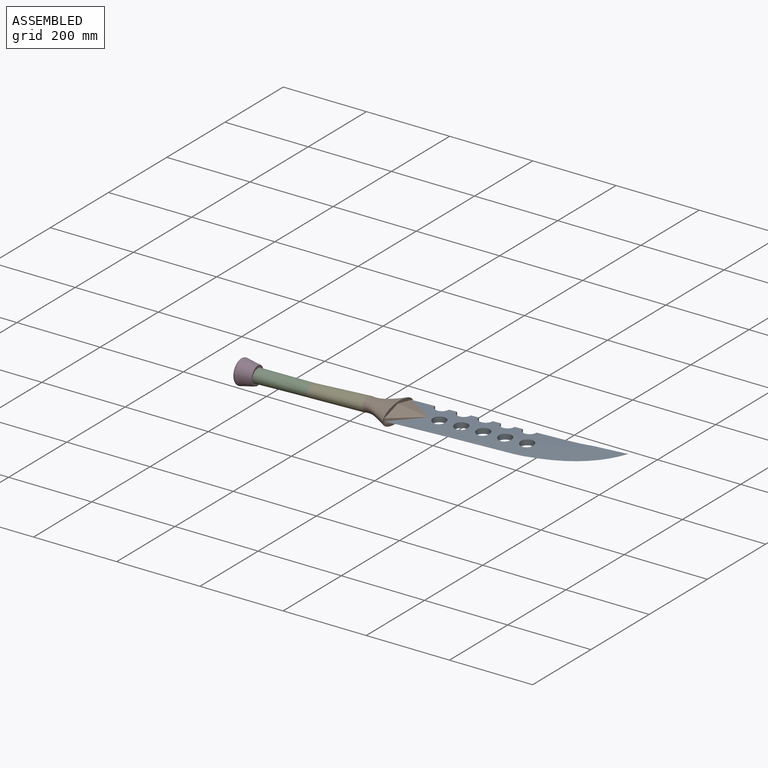
[diagram: assembled view]
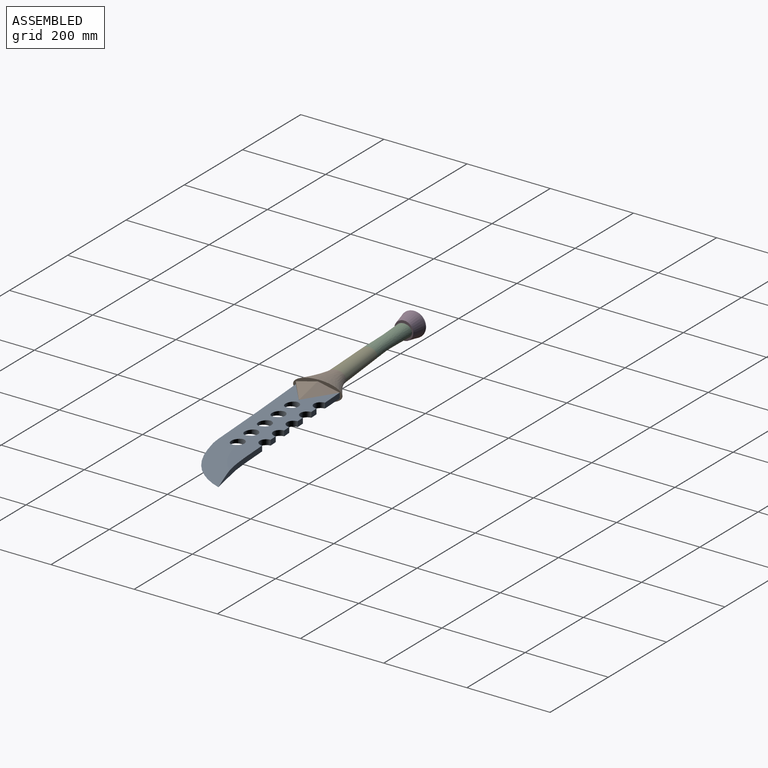
[diagram: assembled view, second angle]
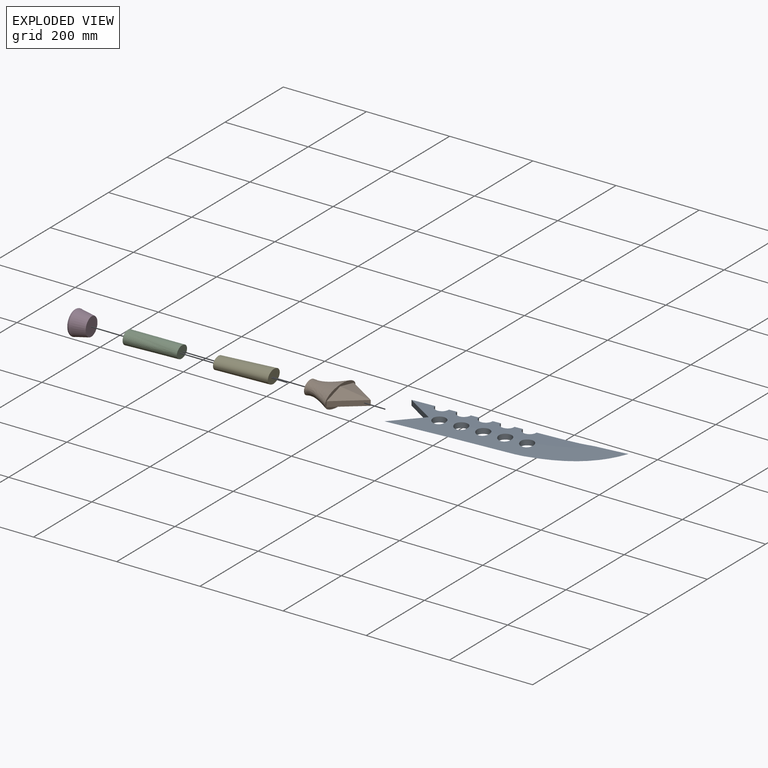
[diagram: exploded view]
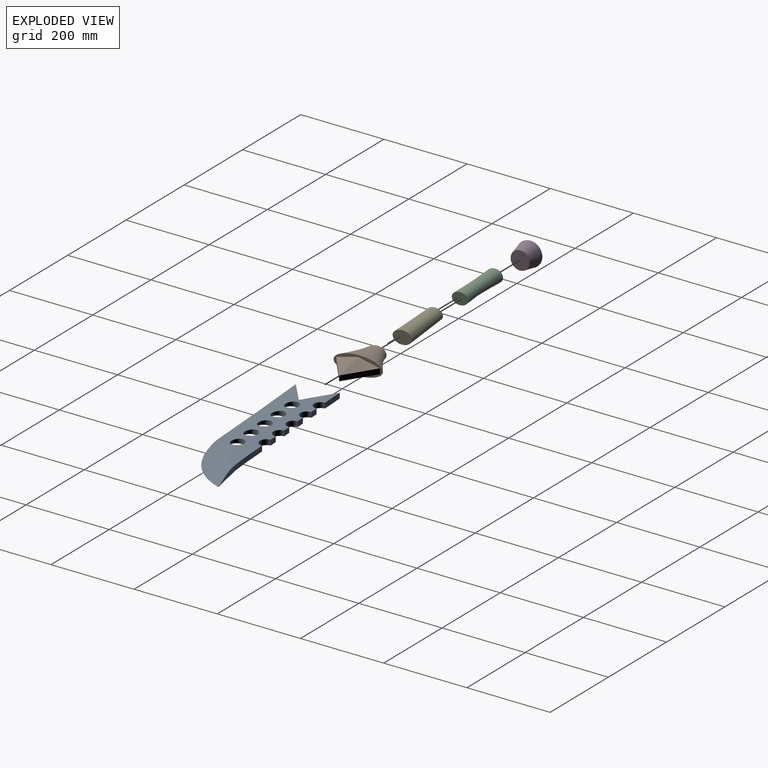
[diagram: exploded view, second angle]
ASSEMBLY  parts=5 mates=4
PART A: 22 faces, bbox 493.2x145.5x15.6 mm
  f0: extruded ~19.05x12.7mm, area 241.9mm2, adj f1,f17,f18,f19
  f1: cylinder r=15.88mm len=31.75mm, axis (0,0,-1), area 633.4mm2, adj f0,f2,f18,f19
  f2: extruded ~54.87x12.7mm, area 696.9mm2, adj f1,f3,f18,f19
  f3: plane 70.75x50.8mm, normal (-0.58,-0.81,0), area 1105.5mm2, adj f2,f4,f18,f19,f20,f21
  f4: plane 73.63x53.68mm, normal (-0.58,0.81,0), area 533.4mm2, adj f3,f20,f21
  f5: extruded ~199.1x21.88mm, area 2072.4mm2, adj f6,f18,f19,f20,f21
  f6: cylinder r=15.88mm len=31.75mm, axis (0,0,-1), area 633.5mm2, adj f5,f7,f18,f19
  f7: extruded ~19.05x12.7mm, area 241.9mm2, adj f6,f8,f18,f19
  f8: cylinder r=15.88mm len=31.75mm, axis (0,0,-1), area 631.9mm2, adj f7,f9,f18,f19
  f9: extruded ~19.05x12.7mm, area 241.9mm2, adj f8,f10,f18,f19
  f10: cylinder r=15.88mm len=31.75mm, axis (0,0,-1), area 633.4mm2, adj f9,f11,f18,f19
  f11: extruded ~19.05x12.7mm, area 241.9mm2, adj f10,f17,f18,f19
  f12: cylinder r=15.88mm len=31.75mm, axis (0,0,-1), area 1266.8mm2, adj f18,f19,f20,f21
  f13: cylinder r=15.88mm len=31.75mm, axis (0,0,-1), area 1266.8mm2, adj f18,f19,f20,f21
  f14: cylinder r=15.88mm len=31.75mm, axis (0,0,-1), area 1266.8mm2, adj f18,f19,f20,f21
  f15: cylinder r=15.88mm len=31.75mm, axis (0,0,-1), area 1266.8mm2, adj f18,f19,f20,f21
  f16: cylinder r=15.88mm len=31.75mm, axis (0,0,-1), area 1266.8mm2, adj f18,f19,f20,f21
  f17: cylinder r=15.88mm len=31.75mm, axis (0,0,-1), area 633.4mm2, adj f0,f11,f18,f19
  f18: plane 422.88x57.18mm, normal (0,0,1), area 12886.8mm2, adj f0,f1,f2,f3,f5,f6,f7,f8
  f19: plane 422.88x57.18mm, normal (0,0,-1), area 12886.6mm2, adj f0,f1,f2,f3,f5,f6,f7,f8
  f20: bspline ~490.28x142.64mm, area 20452.8mm2, adj f3,f4,f5,f12,f13,f14,f15,f16
  f21: bspline ~490.28x142.64mm, area 20456.7mm2, adj f3,f4,f5,f12,f13,f14,f15,f16
PART B: 10 faces, bbox 140.9x114.5x45.4 mm
  f0: plane 70.75x50.8mm, normal (0.58,-0.81,0), area 1106.1mm2, adj f1,f2,f3,f6
  f1: plane 70.75x50.8mm, normal (0.58,0.81,0), area 1106.1mm2, adj f0,f4,f5,f6
  f2: plane 70.75x50.8mm, normal (0.16,-0.23,0.96), area 1873.1mm2, adj f0,f4,f6
  f3: plane 70.75x50.8mm, normal (0.16,-0.23,-0.96), area 1873.1mm2, adj f0,f5,f6
  f4: plane 70.75x50.8mm, normal (0.16,0.23,0.96), area 1873.1mm2, adj f1,f2,f6
  f5: plane 70.75x50.8mm, normal (0.16,0.23,-0.96), area 1873.1mm2, adj f1,f3,f6
  f6: plane 114.26x45.32mm, normal (1,0,0), area 1544mm2, adj f0,f1,f2,f3,f4,f5,f7
  f7: extruded ~114.26x45.32mm, area 66.7mm2, adj f6,f9
  f8: plane 44.45x31.75mm, normal (-1,0,0), area 1108.3mm2, adj f9
  f9: bspline ~114.48x69.85mm, area 12732.3mm2, adj f7,f8
PART C: 6 faces, bbox 127x31.7x40.2 mm
  f0: plane 38.11x28.64mm, normal (1,0,0), area 855mm2, adj f2,f3,f4,f5
  f1: plane 38.1x31.74mm, normal (-1,0,0), area 948.9mm2, adj f2,f3,f4,f5
  f2: bspline ~127x28.91mm, area 3942.7mm2, adj f0,f1,f3,f5
  f3: bspline ~127x23.82mm, area 2282.7mm2, adj f0,f1,f2,f4
  f4: bspline ~127x31.73mm, area 4830mm2, adj f0,f1,f3,f5
  f5: bspline ~127x24.01mm, area 2244.3mm2, adj f0,f1,f2,f4
PART D: 3 faces, bbox 58x43.9x58 mm
  f0: plane 44.13x44.13mm, normal (0,-1,0), area 1529.5mm2, adj f1
  f1: cone r=22.06mm half-angle=11deg, axis (0,1,0), area 5048.3mm2, adj f0,f2
  f2: revolved ~58x58mm, area 3961.5mm2, adj f1
PART E: 3 faces, bbox 127x31.8x44.7 mm
  f0: plane 44.45x31.75mm, normal (1,0,0), area 1108.3mm2, adj f2
  f1: plane 38.1x28.58mm, normal (-1,0,0), area 855mm2, adj f2
  f2: bspline ~127.03x44.66mm, area 14344.7mm2, adj f0,f1
PLACE A rot(axis=(0,0,1),3.3deg) t=(-34.6,18.53,134.59)mm
PLACE B rot(axis=(0,0,1),3.3deg) t=(-94.59,15.13,121.89)mm
PLACE C rot(axis=(-1,-0.03,0.03),90deg) t=(-418.12,-4.57,140.94)mm
PLACE D rot(axis=(0,0,1),93.3deg) t=(-418.12,-4.57,140.94)mm
PLACE E rot(axis=(-1,-0.03,0.03),90deg) t=(-418.12,-4.57,140.94)mm
MATE fastened E.f1 <-> C.f0  axis (-1,-0.06,0) through (-291.21,0.57,140.94)mm
MATE fastened A.f3 <-> B.f1  axis (-0.54,-0.84,0) through (-60.72,42.5,140.94)mm
MATE fastened E.f0 <-> B.f8  axis (1,0.06,0) through (-164.58,11.15,140.94)mm
MATE fastened C.f1 <-> D.f1  axis (-1,-0.06,0) through (-418.12,-4.57,140.94)mm
